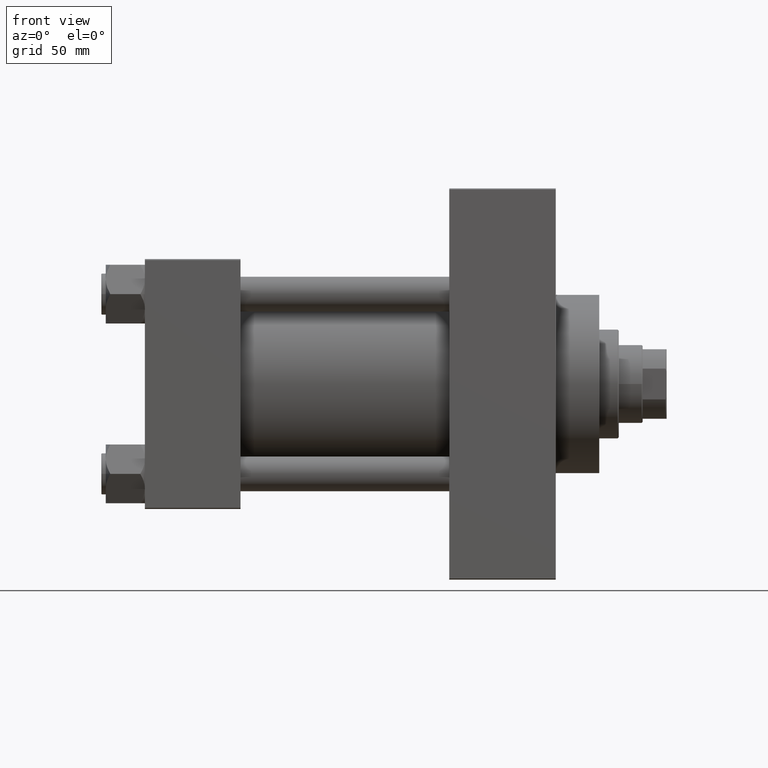
[diagram: clean part render]
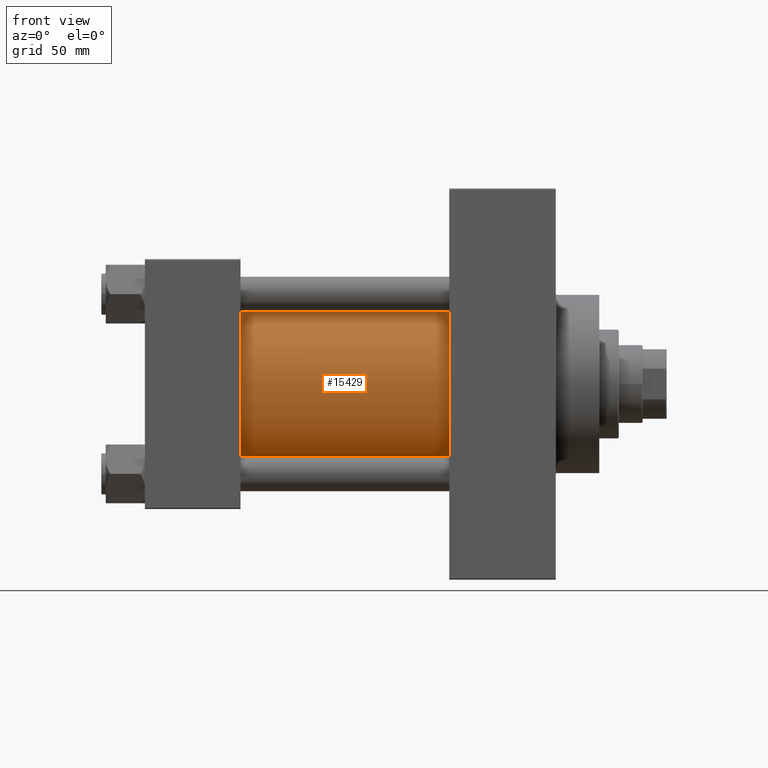
[diagram: same view with one face highlighted and labeled with its STEP entity id]
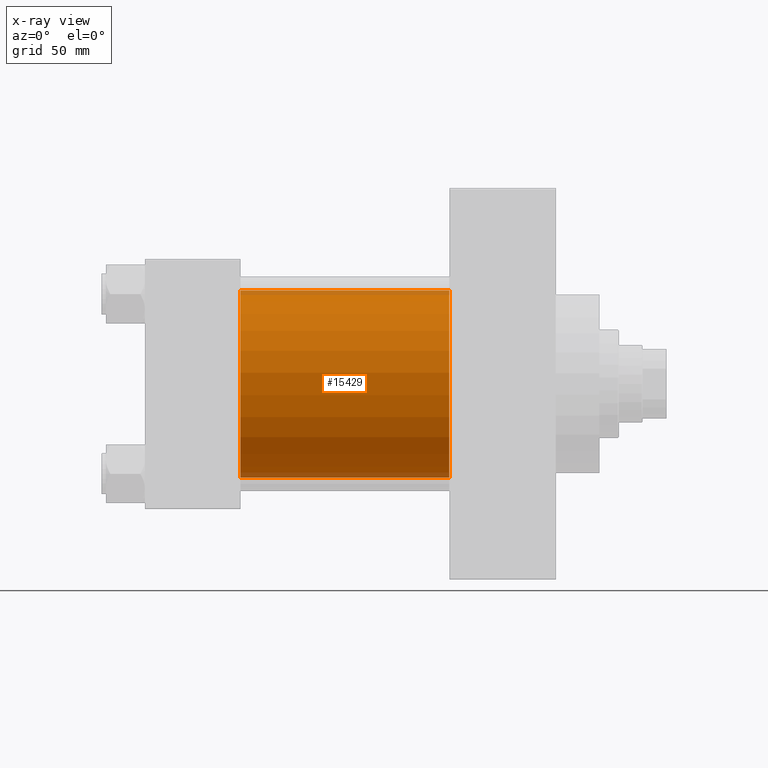
[diagram: x-ray of the same camera — body ghosted, the highlighted face saturated]
A machine part, front view. The second image highlights one B-rep face of the part: STEP entity #15429.
The next image is the same camera in x-ray: the body ghosted, the highlighted face saturated — about 5% of this face is hidden behind the body in this view.
In plain terms, the highlighted cylindrical surface (partial cylindrical patch) has radius 43 mm, axis along (-1, -0, -0).
Its self-contained STEP definition (entity closure, byte-faithful):
#21 = DIRECTION ( 'NONE',  ( -1.000000000000000000, -0.000000000000000000, -0.000000000000000000 ) ) ;
#483 = EDGE_LOOP ( 'NONE', ( #42390, #14638, #18899, #36111 ) ) ;
#742 = CYLINDRICAL_SURFACE ( 'NONE', #32237, 43.00000000000000000 ) ;
#4113 = LINE ( 'NONE', #11333, #44547 ) ;
#5057 = EDGE_CURVE ( 'NONE', #37369, #10373, #44419, .T. ) ;
#5207 = VERTEX_POINT ( 'NONE', #46122 ) ;
#9750 = EDGE_CURVE ( 'NONE', #37369, #14202, #4113, .T. ) ;
#10373 = VERTEX_POINT ( 'NONE', #16238 ) ;
#10865 = DIRECTION ( 'NONE',  ( -1.000000000000000000, -0.000000000000000000, -0.000000000000000000 ) ) ;
#11032 = DIRECTION ( 'NONE',  ( 1.000000000000000000, 0.000000000000000000, 0.000000000000000000 ) ) ;
#11333 = CARTESIAN_POINT ( 'NONE',  ( 140.0000000000000000, -2.602085213965210642E-15, 43.00000000000000000 ) ) ;
#12213 = CARTESIAN_POINT ( 'NONE',  ( 44.00000000000000000, -2.602085213965210642E-15, 0.000000000000000000 ) ) ;
#13275 = DIRECTION ( 'NONE',  ( -1.000000000000000000, -0.000000000000000000, -0.000000000000000000 ) ) ;
#14202 = VERTEX_POINT ( 'NONE', #27305 ) ;
#14638 = ORIENTED_EDGE ( 'NONE', *, *, #5057, .F. ) ;
#14901 = DIRECTION ( 'NONE',  ( 1.000000000000000000, -0.000000000000000000, 0.000000000000000000 ) ) ;
#14913 = CARTESIAN_POINT ( 'NONE',  ( 140.0000000000000000, -2.602085213965210642E-15, 43.00000000000000000 ) ) ;
#15429 = ADVANCED_FACE ( 'NONE', ( #19275 ), #742, .T. ) ;
#16238 = CARTESIAN_POINT ( 'NONE',  ( 140.0000000000000000, 2.663896022368408223E-15, -43.00000000000000000 ) ) ;
#18899 = ORIENTED_EDGE ( 'NONE', *, *, #9750, .T. ) ;
#19275 = FACE_OUTER_BOUND ( 'NONE', #483, .T. ) ;
#20996 = EDGE_CURVE ( 'NONE', #10373, #5207, #38844, .T. ) ;
#25023 = EDGE_CURVE ( 'NONE', #14202, #5207, #27871, .T. ) ;
#27305 = CARTESIAN_POINT ( 'NONE',  ( 44.00000000000000000, -2.602085213965210642E-15, 43.00000000000000000 ) ) ;
#27871 = CIRCLE ( 'NONE', #34055, 43.00000000000000000 ) ;
#28886 = DIRECTION ( 'NONE',  ( 0.000000000000000000, 0.000000000000000000, -1.000000000000000000 ) ) ;
#29433 = DIRECTION ( 'NONE',  ( 0.000000000000000000, 0.000000000000000000, 1.000000000000000000 ) ) ;
#32237 = AXIS2_PLACEMENT_3D ( 'NONE', #33991, #10865, #29433 ) ;
#32401 = VECTOR ( 'NONE', #13275, 1000.000000000000000 ) ;
#33991 = CARTESIAN_POINT ( 'NONE',  ( 140.0000000000000000, -2.602085213965210642E-15, 0.000000000000000000 ) ) ;
#34055 = AXIS2_PLACEMENT_3D ( 'NONE', #12213, #14901, #44330 ) ;
#36111 = ORIENTED_EDGE ( 'NONE', *, *, #25023, .T. ) ;
#37369 = VERTEX_POINT ( 'NONE', #14913 ) ;
#38842 = CARTESIAN_POINT ( 'NONE',  ( 140.0000000000000000, -2.602085213965210642E-15, 0.000000000000000000 ) ) ;
#38844 = LINE ( 'NONE', #43183, #32401 ) ;
#42390 = ORIENTED_EDGE ( 'NONE', *, *, #20996, .F. ) ;
#43183 = CARTESIAN_POINT ( 'NONE',  ( 140.0000000000000000, 2.663896022368408223E-15, -43.00000000000000000 ) ) ;
#43651 = AXIS2_PLACEMENT_3D ( 'NONE', #38842, #11032, #28886 ) ;
#44330 = DIRECTION ( 'NONE',  ( 0.000000000000000000, 0.000000000000000000, 1.000000000000000000 ) ) ;
#44419 = CIRCLE ( 'NONE', #43651, 43.00000000000000000 ) ;
#44547 = VECTOR ( 'NONE', #21, 1000.000000000000000 ) ;
#46122 = CARTESIAN_POINT ( 'NONE',  ( 44.00000000000000000, 2.663896022368408223E-15, -43.00000000000000000 ) ) ;